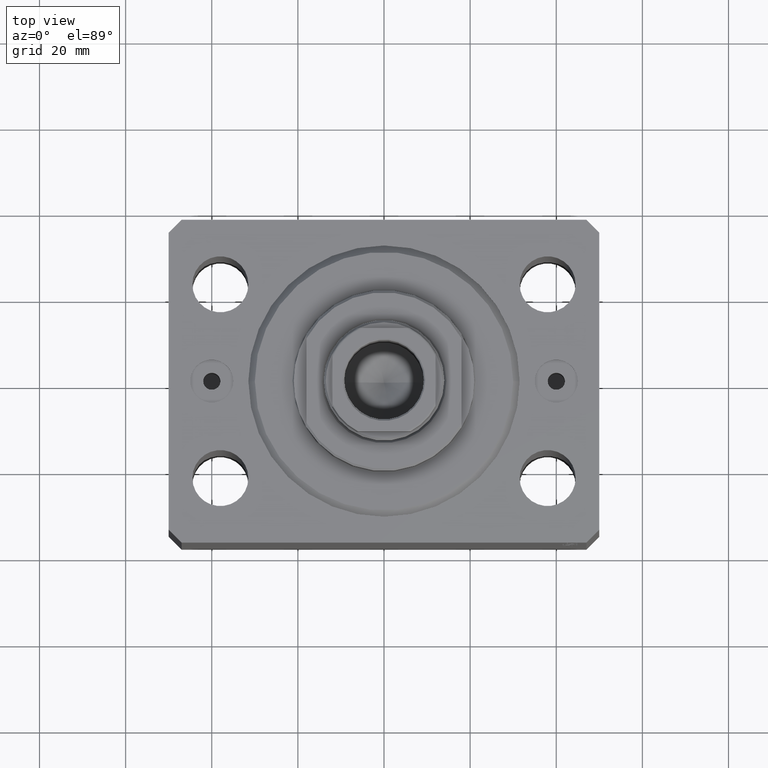
[diagram: clean part render]
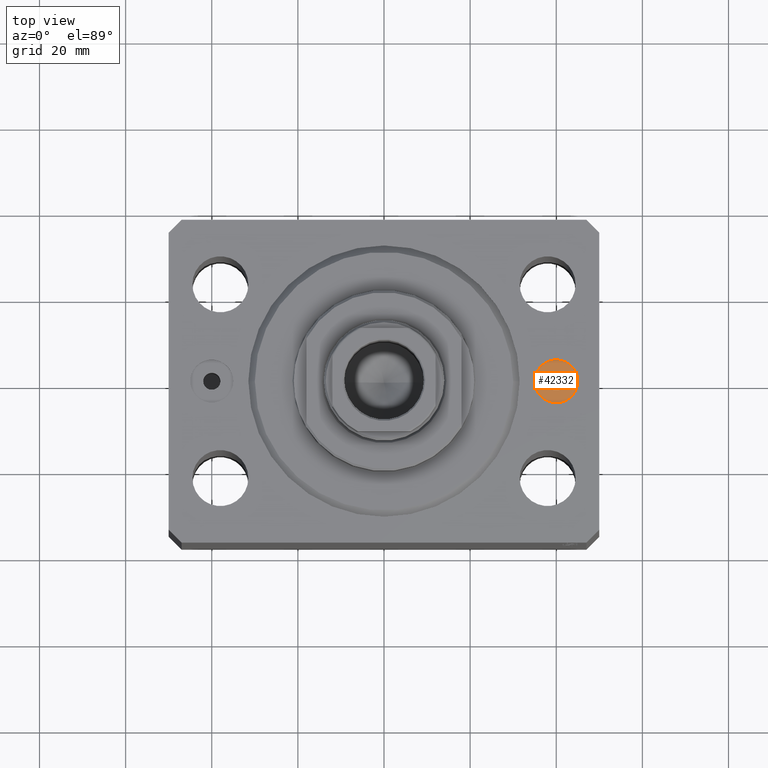
[diagram: same view with one face highlighted and labeled with its STEP entity id]
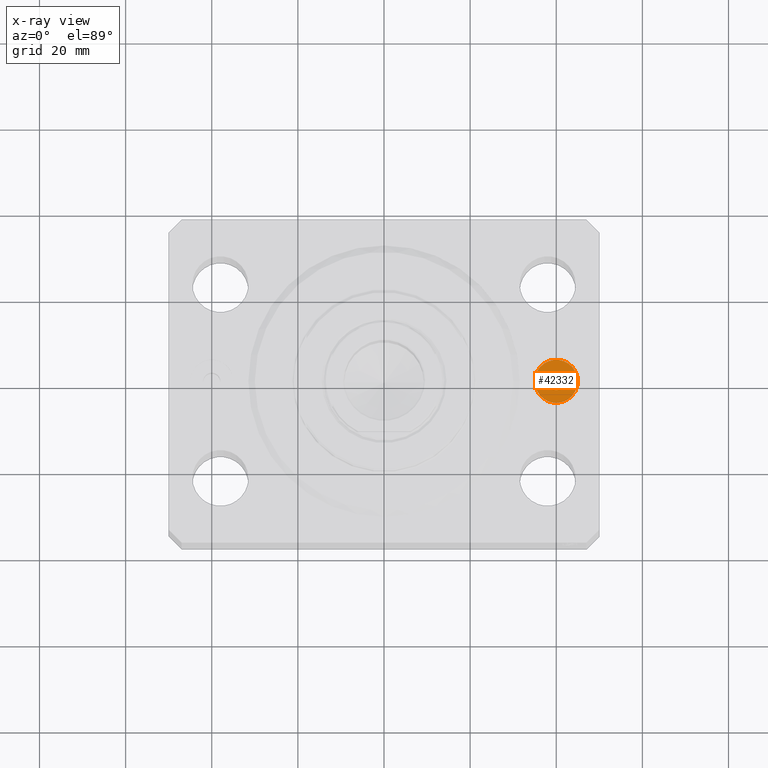
[diagram: x-ray of the same camera — body ghosted, the highlighted face saturated]
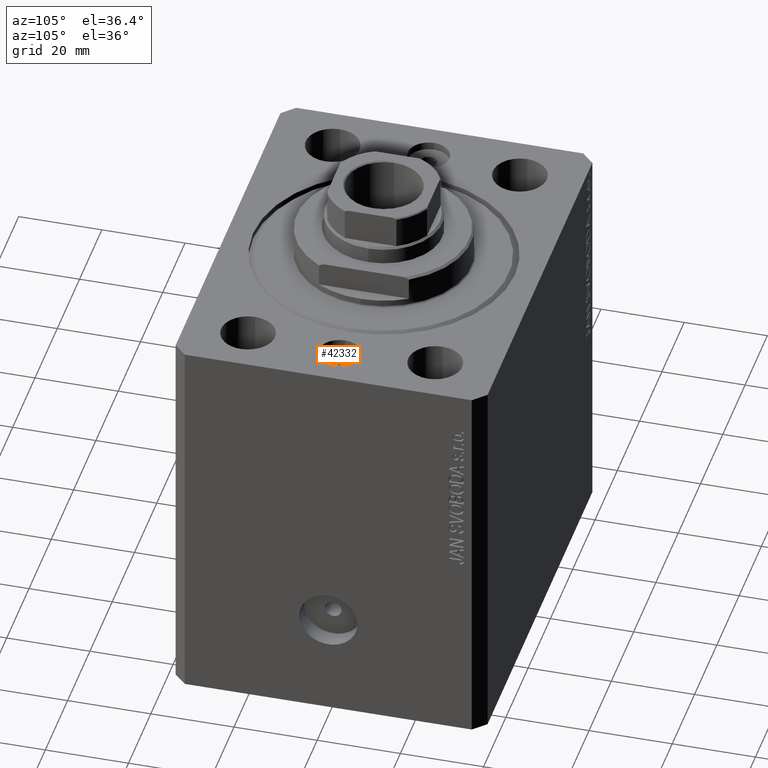
[diagram: same view with one face highlighted and labeled with its STEP entity id]
A machine part, top view. The second image highlights one B-rep face of the part: STEP entity #42332.
The next image is the same camera in x-ray: the body ghosted, the highlighted face saturated — about 0% of this face is hidden behind the body in this view.
A second angle (auxiliary view) of the same face is appended — the face is thin or edge-on in the first view.
In plain terms, the highlighted planar face has unit normal (0, 0, 1).
Its self-contained STEP definition (entity closure, byte-faithful):
#2179 = AXIS2_PLACEMENT_3D ( 'NONE', #21046, #41734, #31629 ) ;
#3218 = AXIS2_PLACEMENT_3D ( 'NONE', #5582, #6032, #29857 ) ;
#5582 = CARTESIAN_POINT ( 'NONE',  ( 0.000000000000000000, 0.000000000000000000, -1.899999999999999911 ) ) ;
#5703 = CARTESIAN_POINT ( 'NONE',  ( 45.00000000000000000, 0.000000000000000000, -1.899999999999999911 ) ) ;
#6032 = DIRECTION ( 'NONE',  ( -0.000000000000000000, 0.000000000000000000, 1.000000000000000000 ) ) ;
#7406 = CARTESIAN_POINT ( 'NONE',  ( 38.00000000000000000, 2.449293598294711345E-16, -1.899999999999999911 ) ) ;
#7905 = EDGE_LOOP ( 'NONE', ( #14417, #27100 ) ) ;
#9549 = EDGE_LOOP ( 'NONE', ( #21910, #32714 ) ) ;
#12223 = CIRCLE ( 'NONE', #2179, 2.000000000000001776 ) ;
#14417 = ORIENTED_EDGE ( 'NONE', *, *, #21472, .F. ) ;
#14554 = EDGE_CURVE ( 'NONE', #33833, #44156, #12223, .T. ) ;
#15663 = DIRECTION ( 'NONE',  ( 0.000000000000000000, 0.000000000000000000, 1.000000000000000000 ) ) ;
#16141 = PLANE ( 'NONE',  #3218 ) ;
#16575 = FACE_OUTER_BOUND ( 'NONE', #7905, .T. ) ;
#16695 = DIRECTION ( 'NONE',  ( 0.000000000000000000, -0.000000000000000000, -1.000000000000000000 ) ) ;
#19236 = EDGE_CURVE ( 'NONE', #36205, #33706, #38902, .T. ) ;
#20128 = CARTESIAN_POINT ( 'NONE',  ( 40.00000000000000000, 0.000000000000000000, -1.899999999999999911 ) ) ;
#20852 = AXIS2_PLACEMENT_3D ( 'NONE', #21649, #24355, #21199 ) ;
#21046 = CARTESIAN_POINT ( 'NONE',  ( 40.00000000000000000, 0.000000000000000000, -1.899999999999999911 ) ) ;
#21199 = DIRECTION ( 'NONE',  ( 1.000000000000000000, 0.000000000000000000, 0.000000000000000000 ) ) ;
#21349 = CARTESIAN_POINT ( 'NONE',  ( 42.00000000000000000, 0.000000000000000000, -1.899999999999999911 ) ) ;
#21472 = EDGE_CURVE ( 'NONE', #33706, #36205, #33152, .T. ) ;
#21649 = CARTESIAN_POINT ( 'NONE',  ( 40.00000000000000000, 0.000000000000000000, -1.899999999999999911 ) ) ;
#21910 = ORIENTED_EDGE ( 'NONE', *, *, #29470, .F. ) ;
#24284 = CIRCLE ( 'NONE', #34344, 2.000000000000001776 ) ;
#24355 = DIRECTION ( 'NONE',  ( 0.000000000000000000, -0.000000000000000000, -1.000000000000000000 ) ) ;
#26318 = CARTESIAN_POINT ( 'NONE',  ( 35.00000000000000000, 6.123233995736762338E-16, -1.899999999999999911 ) ) ;
#27100 = ORIENTED_EDGE ( 'NONE', *, *, #19236, .F. ) ;
#29470 = EDGE_CURVE ( 'NONE', #44156, #33833, #24284, .T. ) ;
#29857 = DIRECTION ( 'NONE',  ( 1.000000000000000000, 0.000000000000000000, 0.000000000000000000 ) ) ;
#30418 = DIRECTION ( 'NONE',  ( 1.000000000000000000, 0.000000000000000000, 0.000000000000000000 ) ) ;
#31629 = DIRECTION ( 'NONE',  ( 1.000000000000000000, 0.000000000000000000, 0.000000000000000000 ) ) ;
#32714 = ORIENTED_EDGE ( 'NONE', *, *, #14554, .F. ) ;
#33152 = CIRCLE ( 'NONE', #43180, 4.999999999999997335 ) ;
#33706 = VERTEX_POINT ( 'NONE', #5703 ) ;
#33833 = VERTEX_POINT ( 'NONE', #7406 ) ;
#34344 = AXIS2_PLACEMENT_3D ( 'NONE', #20128, #15663, #40380 ) ;
#36205 = VERTEX_POINT ( 'NONE', #26318 ) ;
#37154 = CARTESIAN_POINT ( 'NONE',  ( 40.00000000000000000, 0.000000000000000000, -1.899999999999999911 ) ) ;
#38902 = CIRCLE ( 'NONE', #20852, 4.999999999999997335 ) ;
#40380 = DIRECTION ( 'NONE',  ( 1.000000000000000000, 0.000000000000000000, 0.000000000000000000 ) ) ;
#41734 = DIRECTION ( 'NONE',  ( 0.000000000000000000, 0.000000000000000000, 1.000000000000000000 ) ) ;
#42332 = ADVANCED_FACE ( 'NONE', ( #44000, #16575 ), #16141, .T. ) ;
#43180 = AXIS2_PLACEMENT_3D ( 'NONE', #37154, #16695, #30418 ) ;
#44000 = FACE_BOUND ( 'NONE', #9549, .T. ) ;
#44156 = VERTEX_POINT ( 'NONE', #21349 ) ;